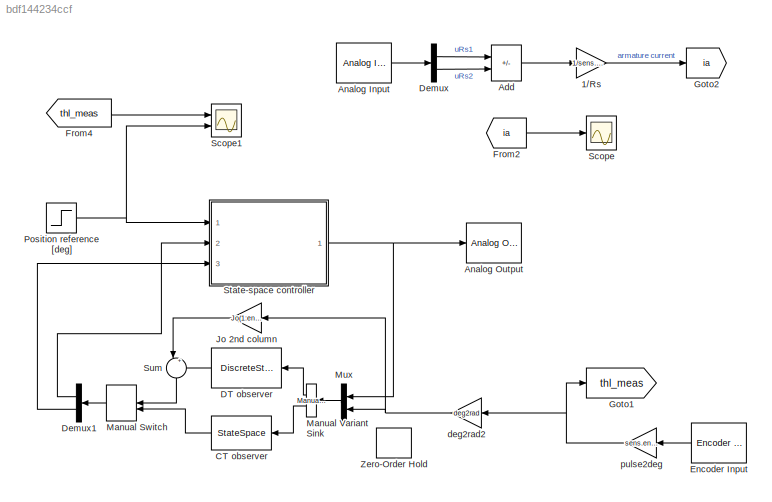
MODEL slx_bdf144234ccf
KIND model
CONFIG AbsTol = auto
CONFIG EnableMultiTasking = off
CONFIG FixedStep = 0.0001
CONFIG MaxStep = auto
CONFIG MinStep = auto
CONFIG RelTol = 1e-3
CONFIG SampleTimeConstraint = Unconstrained
CONFIG SolverName = FixedStepDiscrete
CONFIG StartTime = 0.0
CONFIG StopTime = 30
BLOCK [Gain] 1//Rs
  Gain = 1/sens.curr.Rs
BLOCK [Sum] Add
  IconShape = rectangular
  Inputs = +-
  Ports = [2, 1]
BLOCK [Reference] Analog Input  REF=sldrtlib/Analog Input
  AttributesFormatString = National Instruments\nPCI-6221 [auto]
  Ports = [0, 1]
  SourceBlock = sldrtlib/Analog Input
  SourceProductBaseCode = WT
  SourceType = Simulink Desktop Real-Time Analog Input
BLOCK [Reference] Analog Output  REF=sldrtlib/Analog Output
  AttributesFormatString = National Instruments\nPCI-6221 [auto]
  Ports = [1]
  SourceBlock = sldrtlib/Analog Output
  SourceProductBaseCode = WT
  SourceType = Simulink Desktop Real-Time Analog Output
BLOCK [StateSpace] CT observer
  A = Ao
  B = Bo
  C = Co
  D = Do
  InitialCondition = 0
  Ports = [1, 1]
BLOCK [DiscreteStateSpace] DT observer
  A = Fo
  B = Go
  C = Ho
  D = zeros(2,2)
  SampleTime = Ts
BLOCK [Demux] Demux
  Outputs = 2
  Ports = [1, 2]
BLOCK [Demux] Demux1
  Outputs = 2
  Ports = [1, 2]
BLOCK [Reference] Encoder Input  REF=sldrtlib/Encoder Input
  AttributesFormatString = National Instruments\nPCI-6221 [auto]
  NameLocation = top
  Ports = [0, 1]
  SourceBlock = sldrtlib/Encoder Input
  SourceProductBaseCode = WT
  SourceType = Simulink Desktop Real-Time Encoder Input
BLOCK [From] From2
  GotoTag = ia
BLOCK [From] From4
  GotoTag = thl_meas
BLOCK [Goto] Goto1
  GotoTag = thl_meas
BLOCK [Goto] Goto2
  GotoTag = ia
BLOCK [Gain] Jo 2nd column
  Gain = Jo(1:end,2:end)
BLOCK [ManualSwitch] Manual Switch
  NameLocation = top
BLOCK [Reference] Manual Variant Sink  REF=simulink/Signal
Routing/Manual
Variant Sink
  Ports = [1, 2]
  SourceBlock = simulink/Signal\nRouting/Manual\nVariant Sink
  SourceProductBaseCode = SL
  SourceType = ManualVariantSink
BLOCK [Mux] Mux
  DisplayOption = bar
  Inputs = 2
  Ports = [2, 1]
BLOCK [Step] Position reference [deg]
  After = 120
  SampleTime = Ts
BLOCK [Scope] Scope
  Floating = off
  NumInputPorts = 1
  Ports = [1]
  ScopeSpecificationString = Simulink.scopes.TimeScopeBlockCfg('CurrentConfiguration', extmgr.ConfigurationSet(extmgr.Configuration('Core','General UI',true),extmgr.Configuration('Core','Source UI',true),extmgr.Configuration('Sources','WiredSimulink',true,'DataLoggingVariableName','ScopeEst','DataLogging',true,'DataLoggingSaveFormat','StructureWithTime'),extmgr.Configuration('Visuals','Time Domain',true,'SerializedDisplays',{...<+2680ch>
BLOCK [Scope] Scope1
  Floating = off
  NumInputPorts = 2
  Ports = [2]
  ScopeSpecificationString = Simulink.scopes.TimeScopeBlockCfg('CurrentConfiguration', extmgr.ConfigurationSet(extmgr.Configuration('Core','General UI',true),extmgr.Configuration('Core','Source UI',true),extmgr.Configuration('Sources','WiredSimulink',true,'DataLoggingVariableName','CT2DT','DataLogging',true,'DataLoggingSaveFormat','StructureWithTime','SampleTime','Ts'),extmgr.Configuration('Visuals','Time Domain',true,'Serial...<+1500ch>
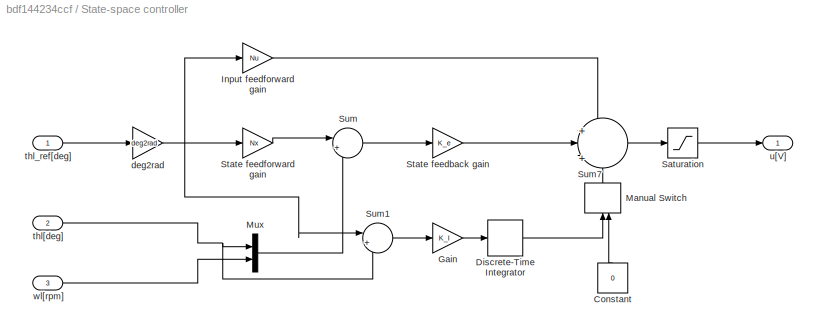
BLOCK [SubSystem] State-space controller
  Ports = [3, 1]
  RequestExecContextInheritance = off
BLOCK [Constant] State-space controller/Constant
  NameLocation = right
  Value = 0
BLOCK [DiscreteIntegrator] State-space controller/Discrete-Time Integrator
  ICPrevOutput = DiscIntNeverNeededParam
  ICPrevScaledInput = DiscIntNeverNeededParam
  InitialConditionSetting = Auto
  Ports = [1, 1]
  SampleTime = Ts
BLOCK [Gain] State-space controller/Gain
  Gain = K_I
BLOCK [Gain] State-space controller/Input feedforward gain
  Gain = Nu
BLOCK [ManualSwitch] State-space controller/Manual Switch
  CurrentSetting = 0
  NameLocation = right
BLOCK [Mux] State-space controller/Mux
  DisplayOption = bar
  Inputs = 2
  Ports = [2, 1]
BLOCK [Saturate] State-space controller/Saturation
  LowerLimit = -12
  UpperLimit = 12
BLOCK [Gain] State-space controller/State feedback gain 
  Gain = K_e
  Multiplication = Matrix(K*u)
BLOCK [Gain] State-space controller/State feedforward gain
  Gain = Nx
BLOCK [Sum] State-space controller/Sum
  Inputs = |+-
  Ports = [2, 1]
BLOCK [Sum] State-space controller/Sum1
  Inputs = |+-
  Ports = [2, 1]
BLOCK [Sum] State-space controller/Sum7
  Inputs = +||+||+
  Ports = [3, 1]
BLOCK [Gain] State-space controller/deg2rad
  Gain = deg2rad
BLOCK [Inport] State-space controller/thl[deg]
  Port = 2
BLOCK [Inport] State-space controller/thl_ref[deg]
BLOCK [Outport] State-space controller/u[V]
BLOCK [Inport] State-space controller/wl[rpm]
  Port = 3
BLOCK [Sum] Sum
  Inputs = |++
  NameLocation = left
  Ports = [2, 1]
BLOCK [ZeroOrderHold] Zero-Order Hold
  SampleTime = Ts
BLOCK [Gain] deg2rad2
  Gain = deg2rad
BLOCK [Gain] pulse2deg
  Gain = sens.enc.pulse2deg
LINE 1//Rs:1 -> Goto2:1
LINE Add:1 -> 1//Rs:1
LINE Analog Input:1 -> Demux:1
LINE CT observer:1 -> Manual Switch:2
LINE DT observer:1 -> Sum:2
LINE Demux1:1 -> State-space controller:2
LINE Demux1:2 -> State-space controller:3
LINE Demux:1 -> Add:1
LINE Demux:2 -> Add:2
LINE Encoder Input:1 -> pulse2deg:1
LINE From2:1 -> Scope:1
LINE From4:1 -> Scope1:1
LINE Jo 2nd column:1 -> Sum:1
LINE Manual Switch:1 -> Demux1:1
LINE Manual Variant Sink:1 -> DT observer:1
LINE Manual Variant Sink:2 -> CT observer:1
LINE Mux:1 -> Manual Variant Sink:1
NET Position reference [deg]:1 -> Scope1:2, State-space controller:1
LINE State-space controller/Constant:1 -> State-space controller/Manual Switch:2
LINE State-space controller/Discrete-Time Integrator:1 -> State-space controller/Manual Switch:1
LINE State-space controller/Gain:1 -> State-space controller/Discrete-Time Integrator:1
LINE State-space controller/Input feedforward gain:1 -> State-space controller/Sum7:1
LINE State-space controller/Manual Switch:1 -> State-space controller/Sum7:3
LINE State-space controller/Mux:1 -> State-space controller/Sum:2
LINE State-space controller/Saturation:1 -> State-space controller/u[V]:1
LINE State-space controller/State feedback gain :1 -> State-space controller/Sum7:2
LINE State-space controller/State feedforward gain:1 -> State-space controller/Sum:1
LINE State-space controller/Sum1:1 -> State-space controller/Gain:1
LINE State-space controller/Sum7:1 -> State-space controller/Saturation:1
LINE State-space controller/Sum:1 -> State-space controller/State feedback gain :1
NET State-space controller/deg2rad:1 -> State-space controller/Input feedforward gain:1, State-space controller/State feedforward gain:1, State-space controller/Sum1:1
NET State-space controller/thl[deg]:1 -> State-space controller/Mux:1, State-space controller/Sum1:2
LINE State-space controller/thl_ref[deg]:1 -> State-space controller/deg2rad:1
LINE State-space controller/wl[rpm]:1 -> State-space controller/Mux:2
NET State-space controller:1 -> Analog Output:1, Mux:1
LINE Sum:1 -> Manual Switch:1
NET deg2rad2:1 -> Jo 2nd column:1, Mux:2
NET pulse2deg:1 -> Goto1:1, deg2rad2:1
note: NET lines group one-source signal fan-out (src -> all destinations, sorted); 1:1 wires keep LINE
